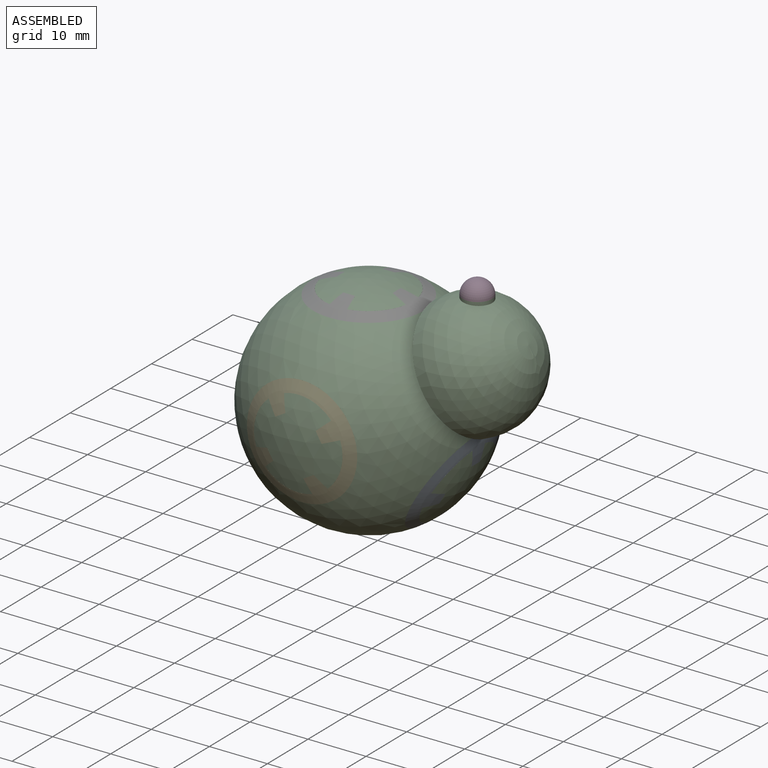
[diagram: assembled view]
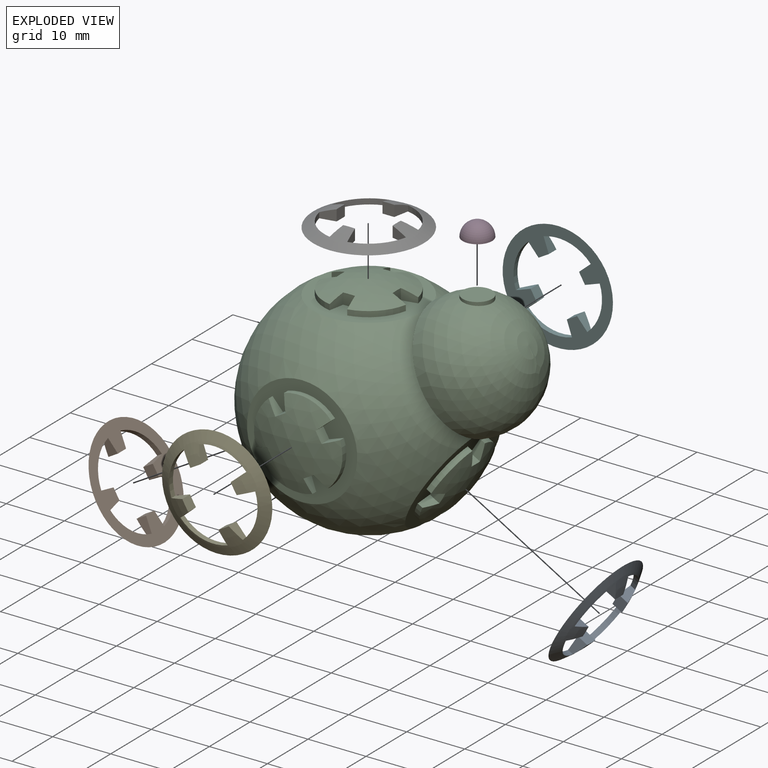
[diagram: exploded view]
GUIDED TOUR — MATED ASSEMBLY (Onshape document bc22e907c626483dd762ce62, AutoMate assembly bc22e907c626483dd762ce62_9c946bd3d4ee28ae78b2b2a9_42b98a6be32fc511b92b9dac_default)

This assembly has 7 components, labeled P0..P6 below (a component is one placed occurrence of a part; the same part can appear more than once), held together by 6 mates. A mate is a constraint between two components; its type names the relative motion it leaves free:
  FASTENED — locks the two components together rigidly (no relative motion).
Axis/direction vectors are unit vectors and 'through' points are millimeter coordinates, both in the assembly's world frame.

MATES
  1. FASTENED "Fastened 2": P4 <-> P2, direction (0.000, 1.000, 0.000) through (-7.48, -6.49, 0.26) mm
  2. FASTENED "Fastened 6": P2 <-> P3, direction (0.000, 0.000, 1.000) through (11.16, 10.02, 21.79) mm
  3. FASTENED "Fastened 5": P1 <-> P2, direction (0.864, 0.000, 0.504) through (-21.74, 10.02, -8.05) mm
  4. FASTENED "Fastened 1": P6 <-> P2, direction (0.004, 0.000, -1.000) through (-7.55, 10.02, 16.77) mm
  5. FASTENED "Fastened 3": P5 <-> P2, direction (0.000, -1.000, 0.000) through (-13.16, 26.53, -4.82) mm
  6. FASTENED "Fastened 4": P0 <-> P2, direction (-0.868, 0.000, 0.496) through (6.85, 10.02, -7.93) mm

ASSEMBLY ORDER
  1. P2 — the base component [order heuristic]
  2. P4 — core [order heuristic]
  3. P5 — core [order heuristic]
  4. P6 [order verified]
  5. P0 [order verified]
  6. P1 [order verified]
  7. P3 [order verified]
(P0, P1, P6 verified with a relaxed clearance tolerance: the source model stores slight part interference there.)
Order-tag legend:
  [order verified] — this step's position reverses a verified removal order: the component was checked to insert without passing through the ones already placed.
  [order heuristic] — the first 3 components form the assembly's core: parts whose collision-free extraction could not be verified, listed in mate-graph order.

Of the 7 components, 2 carry the full construction recipe — the FeatureScript program that regenerates the part's solid from scratch; the rest are supplied as boundary geometry only.
Each toured component is shown spotlighted twice — in the assembled view, then in the exploded view, where a leader line traces a displaced component back to its assembled socket (saturated green if recipe-attached, orange if geometry-only; every other component desaturated gray) — followed by its recipe or geometry summary and the mates that hold it.
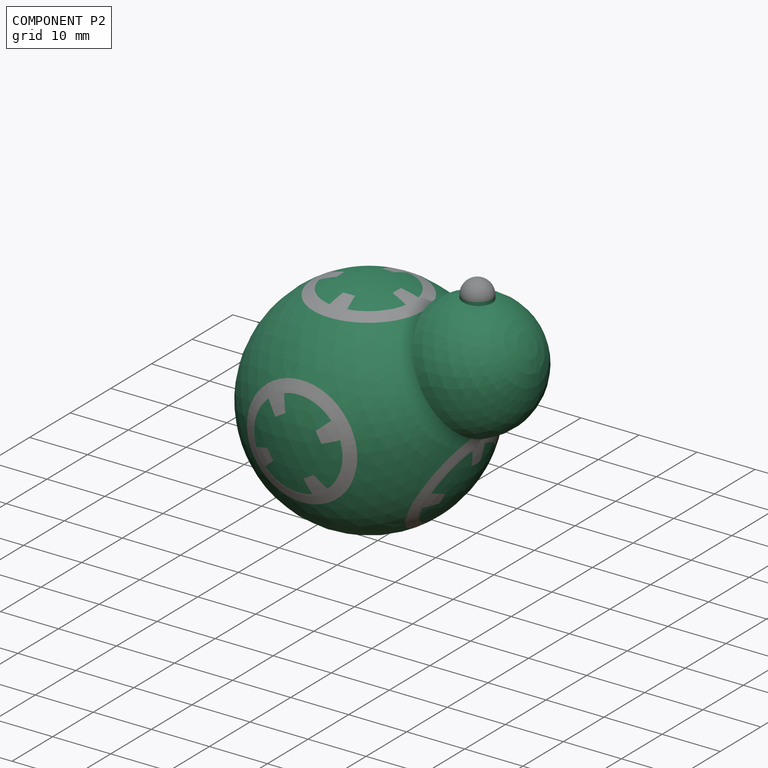
[diagram: component P2 — assembled]
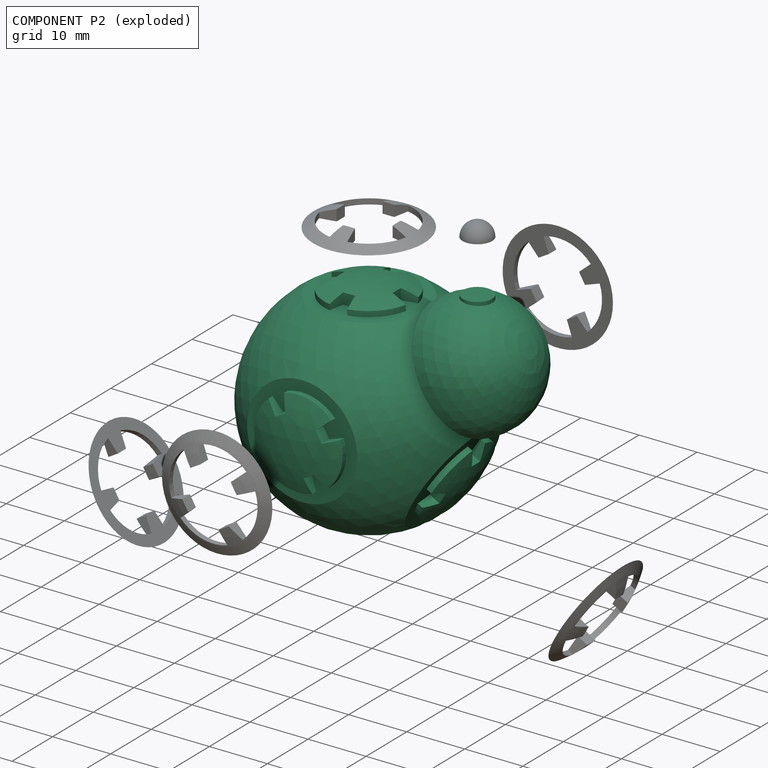
[diagram: component P2 — exploded]
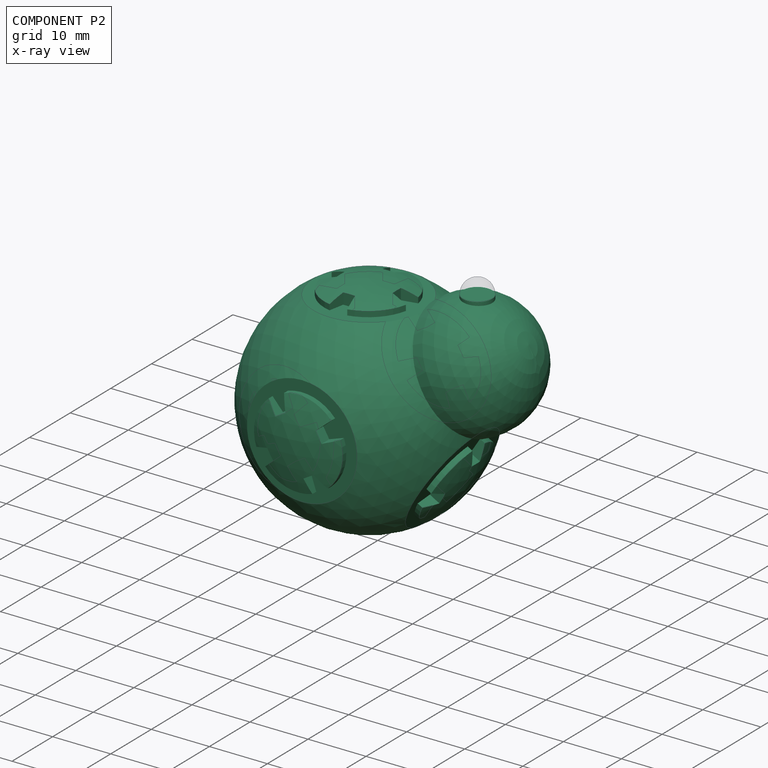
[diagram: component P2 — x-ray view]
COMPONENT P2 — recipe-attached (CADFS 00247918, mesh-verified: the recipe's output STEP matches this component's geometry to below the mesh-comparison resolution (tessellation chordal tolerance ~0.111 mm)).
Held by: FASTENED mate "Fastened 2" to P4; FASTENED mate "Fastened 6" to P3; FASTENED mate "Fastened 5" to P1; FASTENED mate "Fastened 1" to P6; FASTENED mate "Fastened 3" to P5; FASTENED mate "Fastened 4" to P0.
Construction recipe (FeatureScript — the CAD program that rebuilds this solid; sketch coordinates are in the units given by the * unit suffixes, e.g. mm):

FeatureScript 1511;
import(path : "onshape/std/geometry.fs", version : "1511.0");
import(path : "onshape/std/common.fs", version : "1511.0");
const mm = millimeter;
const VERTEX = EntityType.VERTEX;
const EDGE = EntityType.EDGE;
const FACE = EntityType.FACE;
const BODY = EntityType.BODY;
function v(x, y){return vector(x, y);}
function OD(order){return orderDisambiguation(order);}
function OSD(set){return originalSetDisambiguation(set);}
function TD(topology){return topologyDisambiguation(topology);}
function TDD(query){return trueDependencyDisambiguation(query);}
function sQuery(a, b, c) {return sketchEntityQuery(a, b, c);}

annotation { "Feature Type Name" : "Feature", "Feature Type Description" : "" }
export const myFeature = defineFeature(function(context is Context, id is Id, definition is map)
    precondition{}
    {
        {
            var Q0;
            Q0=qCreatedBy(makeId("Front.planeOp"),FACE);
            var sketch = newSketch(context, id + "F0", { "sketchPlane" : qUnion([Q0])});
            skArc(sketch, "E0", {"start": v(-6.2, 18.01) * mm, "mid": v(-18.79, -3.15) * mm, "end": v(0, -19.05) * mm});
            skLineSegment(sketch, "E1", {"start": v(0, -19.05) * mm, "end": v(0, 31.75) * mm});
            skArc(sketch, "E2", {"start": v(-10.54, 19.2) * mm, "mid": v(-8.4, 18.52) * mm, "end": v(-6.2, 18.01) * mm});
            skArc(sketch, "E3.trimOffspring", {"start": v(0, 31.75) * mm, "mid": v(-8.2, 27.93) * mm, "end": v(-10.54, 19.2) * mm});
            skPoint(sketch, "E4.trimOffspring.end.orphan", {"position": v(9.8, 19.2) * mm});
            skPoint(sketch, "E5", {"position": v(-17, -8.58) * mm});
            skLineSegment(sketch, "E6", {"start": v(-6, 29.9) * mm, "end": v(-10.66, 21.92) * mm, "construction": true});
            skSolve(sketch);
        }
        {
            var Q0;
            {var subQ0=sQuery(id+"F0.wireOp",EDGE,"E0");Q0=makeQuery(id+"F0.imprint","IMPRINT",FACE,{"disambiguationData":[TD([[makeQuery(id+"F0.imprint","IMPRINT",EDGE,{"derivedFrom":subQ0}),1.0]])]});}
            var Q1;
            Q1=sQuery(id+"F0.wireOp",EDGE,"E1");
            revolve(context, id + "F1", {"entities" : qUnion([Q0]), "axis" : qUnion([Q1]), "revolveType" : RevolveType.FULL});
        }
        {
            var Q0;
            Q0=qCreatedBy(makeId("Front.planeOp"),FACE);
            cPlane(context, id + "F2", {"entities" : qUnion([Q0]), "cplaneType" : CPlaneType.OFFSET, "offset" : 19.05 * mm, "width" : 152.4 * mm, "height" : 152.4 * mm});
        }
        {
            var Q0;
            Q0=qCreatedBy(id+"F2.planeOp",FACE);
            var sketch = newSketch(context, id + "F3", { "sketchPlane" : qUnion([Q0])});
            skCircle(sketch, "E7", {"center": v(0, 0) * mm, "radius": 10.67 * mm});
            skArc(sketch, "E8", {"start": v(1.53, -7.47) * mm, "mid": v(5.39, -5.39) * mm, "end": v(7.47, -1.53) * mm});
            skLineSegment(sketch, "E9", {"start": v(0, -4.83) * mm, "end": v(-1.02, -4.83) * mm});
            skLineSegment(sketch, "E10", {"start": v(-1.02, -4.83) * mm, "end": v(-1.53, -7.47) * mm});
            skLineSegment(sketch, "E11.MirrorCS", {"start": v(1.02, -4.83) * mm, "end": v(1.53, -7.47) * mm});
            skLineSegment(sketch, "E12.MirrorCS", {"start": v(0, -4.83) * mm, "end": v(1.02, -4.83) * mm});
            skLineSegment(sketch, "E13.1.0", {"start": v(4.83, -1.02) * mm, "end": v(7.47, -1.53) * mm});
            skLineSegment(sketch, "E13.1.1", {"start": v(4.83, 0) * mm, "end": v(4.83, 1.02) * mm});
            skLineSegment(sketch, "E13.1.2", {"start": v(4.83, 0) * mm, "end": v(4.83, -1.02) * mm});
            skLineSegment(sketch, "E13.1.3", {"start": v(4.83, 1.02) * mm, "end": v(7.47, 1.53) * mm});
            skLineSegment(sketch, "E13.2.0", {"start": v(1.02, 4.83) * mm, "end": v(1.53, 7.47) * mm});
            skLineSegment(sketch, "E13.2.1", {"start": v(0, 4.83) * mm, "end": v(-1.02, 4.83) * mm});
            skLineSegment(sketch, "E13.2.2", {"start": v(0, 4.83) * mm, "end": v(1.02, 4.83) * mm});
            skLineSegment(sketch, "E13.2.3", {"start": v(-1.02, 4.83) * mm, "end": v(-1.53, 7.47) * mm});
            skLineSegment(sketch, "E13.3.0", {"start": v(-4.83, 1.02) * mm, "end": v(-7.47, 1.53) * mm});
            skLineSegment(sketch, "E13.3.1", {"start": v(-4.83, 0) * mm, "end": v(-4.83, -1.02) * mm});
            skLineSegment(sketch, "E13.3.2", {"start": v(-4.83, 0) * mm, "end": v(-4.83, 1.02) * mm});
            skLineSegment(sketch, "E13.3.3", {"start": v(-4.83, -1.02) * mm, "end": v(-7.47, -1.53) * mm});
            skArc(sketch, "E14.trimOffspring", {"start": v(-7.47, -1.53) * mm, "mid": v(-5.39, -5.39) * mm, "end": v(-1.53, -7.47) * mm});
            skArc(sketch, "E15.trimOffspring", {"start": v(-1.53, 7.47) * mm, "mid": v(-5.39, 5.39) * mm, "end": v(-7.47, 1.53) * mm});
            skArc(sketch, "E16.trimOffspring", {"start": v(7.47, 1.53) * mm, "mid": v(5.39, 5.39) * mm, "end": v(1.53, 7.47) * mm});
            skSolve(sketch);
        }
        {
            var Q0;
            Q0 = qSketchRegion(id + "F3", true);
            extrude(context, id + "F4", {"entities" : qUnion([Q0]), "operationType" : NewBodyOperationType.REMOVE, "oppositeDirection" : true, "depth" : 2.54 * mm});
        }
        {
            var Q0;
            Q0=qCreatedBy(makeId("Front.planeOp"),FACE);
            var sketch = newSketch(context, id + "F5", { "sketchPlane" : qUnion([Q0])});
            skCircle(sketch, "E17", {"center": v(0, 0) * mm, "radius": 19.05 * mm});
            skLineSegment(sketch, "E18", {"start": v(0, -19.05) * mm, "end": v(0, 19.05) * mm});
            skLineSegment(sketch, "E19", {"start": v(0, 0) * mm, "end": v(0, 19.05) * mm});
            skLineSegment(sketch, "E20", {"start": v(0, 19.05) * mm, "end": v(16.5, -9.53) * mm});
            skLineSegment(sketch, "E21", {"start": v(16.5, -9.53) * mm, "end": v(0, -9.53) * mm});
            skLineSegment(sketch, "E22.MirrorCS", {"start": v(0, 19.05) * mm, "end": v(-16.5, -9.53) * mm});
            skLineSegment(sketch, "E23.MirrorCS", {"start": v(-16.5, -9.53) * mm, "end": v(0, -9.53) * mm});
            skLineSegment(sketch, "E24", {"start": v(16.5, 9.53) * mm, "end": v(25.5, -6.07) * mm});
            skLineSegment(sketch, "E25.MirrorCS", {"start": v(16.5, 9.52) * mm, "end": v(7.5, 25.12) * mm});
            skLineSegment(sketch, "E26.1.0", {"start": v(-16.5, 9.53) * mm, "end": v(-25.5, -6.07) * mm});
            skLineSegment(sketch, "E26.1.1", {"start": v(-16.5, 9.52) * mm, "end": v(-7.5, 25.12) * mm});
            skLineSegment(sketch, "E26.2.0", {"start": v(0, -19.05) * mm, "end": v(18, -19.05) * mm});
            skLineSegment(sketch, "E26.2.1", {"start": v(0, -19.05) * mm, "end": v(-18, -19.05) * mm});
            skPoint(sketch, "E27.start.orphan", {"position": v(8.25, 4.76) * mm});
            skLineSegment(sketch, "E28", {"start": v(0, 0) * mm, "end": v(-16.5, 9.53) * mm});
            skLineSegment(sketch, "E29", {"start": v(0, 0) * mm, "end": v(16.5, 9.53) * mm});
            skSolve(sketch);
        }
        {
            var Q0;
            Q0=sQuery(id+"F5.wireOp",VERTEX,"E26.2.0.start");
            var Q1;
            Q1=sQuery(id+"F5.wireOp",EDGE,"E18");
            cPlane(context, id + "F6", {"entities" : qUnion([Q0, Q1]), "cplaneType" : CPlaneType.LINE_POINT, "offset" : 25.4 * mm, "width" : 152.4 * mm, "height" : 152.4 * mm});
        }
        {
            var Q0;
            Q0=qCreatedBy(id+"F6.planeOp",FACE);
            var sketch = newSketch(context, id + "F7", { "sketchPlane" : qUnion([Q0])});
            skCircle(sketch, "E30", {"center": v(0, 0) * mm, "radius": 10.67 * mm});
            skArc(sketch, "E31", {"start": v(1.53, -7.47) * mm, "mid": v(5.39, -5.39) * mm, "end": v(7.47, -1.53) * mm});
            skLineSegment(sketch, "E32", {"start": v(0, -4.83) * mm, "end": v(-1.02, -4.83) * mm});
            skLineSegment(sketch, "E33", {"start": v(-1.02, -4.83) * mm, "end": v(-1.53, -7.47) * mm});
            skLineSegment(sketch, "E34.MirrorCS", {"start": v(1.02, -4.83) * mm, "end": v(1.53, -7.47) * mm});
            skLineSegment(sketch, "E35.MirrorCS", {"start": v(0, -4.83) * mm, "end": v(1.02, -4.83) * mm});
            skLineSegment(sketch, "E36.1.0", {"start": v(4.83, -1.02) * mm, "end": v(7.47, -1.53) * mm});
            skLineSegment(sketch, "E36.1.1", {"start": v(4.83, 0) * mm, "end": v(4.83, 1.02) * mm});
            skLineSegment(sketch, "E36.1.2", {"start": v(4.83, 0) * mm, "end": v(4.83, -1.02) * mm});
            skLineSegment(sketch, "E36.1.3", {"start": v(4.83, 1.02) * mm, "end": v(7.47, 1.53) * mm});
            skLineSegment(sketch, "E36.2.0", {"start": v(1.02, 4.83) * mm, "end": v(1.53, 7.47) * mm});
            skLineSegment(sketch, "E36.2.1", {"start": v(0, 4.83) * mm, "end": v(-1.02, 4.83) * mm});
            skLineSegment(sketch, "E36.2.2", {"start": v(0, 4.83) * mm, "end": v(1.02, 4.83) * mm});
            skLineSegment(sketch, "E36.2.3", {"start": v(-1.02, 4.83) * mm, "end": v(-1.53, 7.47) * mm});
            skLineSegment(sketch, "E36.3.0", {"start": v(-4.83, 1.02) * mm, "end": v(-7.47, 1.53) * mm});
            skLineSegment(sketch, "E36.3.1", {"start": v(-4.83, 0) * mm, "end": v(-4.83, -1.02) * mm});
            skLineSegment(sketch, "E36.3.2", {"start": v(-4.83, 0) * mm, "end": v(-4.83, 1.02) * mm});
            skLineSegment(sketch, "E36.3.3", {"start": v(-4.83, -1.02) * mm, "end": v(-7.47, -1.53) * mm});
            skArc(sketch, "E37.trimOffspring", {"start": v(-7.47, -1.53) * mm, "mid": v(-5.39, -5.39) * mm, "end": v(-1.53, -7.47) * mm});
            skArc(sketch, "E38.trimOffspring", {"start": v(-1.53, 7.47) * mm, "mid": v(-5.39, 5.39) * mm, "end": v(-7.47, 1.53) * mm});
            skArc(sketch, "E39.trimOffspring", {"start": v(7.47, 1.53) * mm, "mid": v(5.39, 5.39) * mm, "end": v(1.53, 7.47) * mm});
            skSolve(sketch);
        }
        {
            var Q0;
            Q0=makeQuery(id+"F7.imprint","IMPRINT",FACE,{"disambiguationData":[TD([[makeQuery(id+"F7.imprint","IMPRINT",EDGE,{"derivedFrom":sQuery(id+"F7.wireOp",EDGE,"E30")}),1.0]])]});
            extrude(context, id + "F8", {"entities" : qUnion([Q0]), "operationType" : NewBodyOperationType.REMOVE, "depth" : 2.54 * mm});
        }
        {
            var Q0;
            Q0=sQuery(id+"F5.wireOp",VERTEX,"E28.end");
            var Q1;
            Q1=sQuery(id+"F5.wireOp",EDGE,"E28");
            cPlane(context, id + "F9", {"entities" : qUnion([Q0, Q1]), "cplaneType" : CPlaneType.LINE_POINT, "offset" : 25.4 * mm, "width" : 152.4 * mm, "height" : 152.4 * mm});
        }
        {
            var Q0;
            Q0=qCreatedBy(id+"F9.planeOp",FACE);
            var sketch = newSketch(context, id + "F10", { "sketchPlane" : qUnion([Q0])});
            skCircle(sketch, "E40", {"center": v(0, 0) * mm, "radius": 10.67 * mm});
            skArc(sketch, "E41", {"start": v(1.53, -7.47) * mm, "mid": v(5.39, -5.39) * mm, "end": v(7.47, -1.53) * mm});
            skLineSegment(sketch, "E42", {"start": v(0, -4.83) * mm, "end": v(-1.02, -4.83) * mm});
            skLineSegment(sketch, "E43", {"start": v(-1.02, -4.83) * mm, "end": v(-1.53, -7.47) * mm});
            skLineSegment(sketch, "E44.MirrorCS", {"start": v(1.02, -4.83) * mm, "end": v(1.53, -7.47) * mm});
            skLineSegment(sketch, "E45.MirrorCS", {"start": v(0, -4.83) * mm, "end": v(1.02, -4.83) * mm});
            skLineSegment(sketch, "E46.1.0", {"start": v(4.83, -1.02) * mm, "end": v(7.47, -1.53) * mm});
            skLineSegment(sketch, "E46.1.1", {"start": v(4.83, 0) * mm, "end": v(4.83, 1.02) * mm});
            skLineSegment(sketch, "E46.1.2", {"start": v(4.83, 0) * mm, "end": v(4.83, -1.02) * mm});
            skLineSegment(sketch, "E46.1.3", {"start": v(4.83, 1.02) * mm, "end": v(7.47, 1.53) * mm});
            skLineSegment(sketch, "E46.2.0", {"start": v(1.02, 4.83) * mm, "end": v(1.53, 7.47) * mm});
            skLineSegment(sketch, "E46.2.1", {"start": v(0, 4.83) * mm, "end": v(-1.02, 4.83) * mm});
            skLineSegment(sketch, "E46.2.2", {"start": v(0, 4.83) * mm, "end": v(1.02, 4.83) * mm});
            skLineSegment(sketch, "E46.2.3", {"start": v(-1.02, 4.83) * mm, "end": v(-1.53, 7.47) * mm});
            skLineSegment(sketch, "E46.3.0", {"start": v(-4.83, 1.02) * mm, "end": v(-7.47, 1.53) * mm});
            skLineSegment(sketch, "E46.3.1", {"start": v(-4.83, 0) * mm, "end": v(-4.83, -1.02) * mm});
            skLineSegment(sketch, "E46.3.2", {"start": v(-4.83, 0) * mm, "end": v(-4.83, 1.02) * mm});
            skLineSegment(sketch, "E46.3.3", {"start": v(-4.83, -1.02) * mm, "end": v(-7.47, -1.53) * mm});
            skArc(sketch, "E47.trimOffspring", {"start": v(-7.47, -1.53) * mm, "mid": v(-5.39, -5.39) * mm, "end": v(-1.53, -7.47) * mm});
            skArc(sketch, "E48.trimOffspring", {"start": v(-1.53, 7.47) * mm, "mid": v(-5.39, 5.39) * mm, "end": v(-7.47, 1.53) * mm});
            skArc(sketch, "E49.trimOffspring", {"start": v(7.47, 1.53) * mm, "mid": v(5.39, 5.39) * mm, "end": v(1.53, 7.47) * mm});
            skSolve(sketch);
        }
        {
            var Q0;
            Q0=makeQuery(id+"F10.imprint","IMPRINT",FACE,{"disambiguationData":[TD([[makeQuery(id+"F10.imprint","IMPRINT",EDGE,{"derivedFrom":sQuery(id+"F10.wireOp",EDGE,"E40")}),1.0]])]});
            extrude(context, id + "F11", {"entities" : qUnion([Q0]), "operationType" : NewBodyOperationType.REMOVE, "oppositeDirection" : true, "depth" : 2.54 * mm});
        }
        {
            var Q0;
            Q0=sQuery(id+"F5.wireOp",VERTEX,"E29.end");
            var Q1;
            Q1=sQuery(id+"F5.wireOp",EDGE,"E29");
            cPlane(context, id + "F12", {"entities" : qUnion([Q0, Q1]), "cplaneType" : CPlaneType.LINE_POINT, "offset" : 25.4 * mm, "width" : 152.4 * mm, "height" : 152.4 * mm});
        }
        {
            var Q0;
            Q0=qCreatedBy(id+"F12.planeOp",FACE);
            var sketch = newSketch(context, id + "F13", { "sketchPlane" : qUnion([Q0])});
            skCircle(sketch, "E50", {"center": v(0, 0) * mm, "radius": 10.67 * mm});
            skArc(sketch, "E51", {"start": v(1.53, -7.47) * mm, "mid": v(5.39, -5.39) * mm, "end": v(7.47, -1.53) * mm});
            skLineSegment(sketch, "E52", {"start": v(0, -4.83) * mm, "end": v(-1.02, -4.83) * mm});
            skLineSegment(sketch, "E53", {"start": v(-1.02, -4.83) * mm, "end": v(-1.53, -7.47) * mm});
            skLineSegment(sketch, "E54.MirrorCS", {"start": v(1.02, -4.83) * mm, "end": v(1.53, -7.47) * mm});
            skLineSegment(sketch, "E55.MirrorCS", {"start": v(0, -4.83) * mm, "end": v(1.02, -4.83) * mm});
            skLineSegment(sketch, "E56.1.0", {"start": v(4.83, -1.02) * mm, "end": v(7.47, -1.53) * mm});
            skLineSegment(sketch, "E56.1.1", {"start": v(4.83, 0) * mm, "end": v(4.83, 1.02) * mm});
            skLineSegment(sketch, "E56.1.2", {"start": v(4.83, 0) * mm, "end": v(4.83, -1.02) * mm});
            skLineSegment(sketch, "E56.1.3", {"start": v(4.83, 1.02) * mm, "end": v(7.47, 1.53) * mm});
            skLineSegment(sketch, "E56.2.0", {"start": v(1.02, 4.83) * mm, "end": v(1.53, 7.47) * mm});
            skLineSegment(sketch, "E56.2.1", {"start": v(0, 4.83) * mm, "end": v(-1.02, 4.83) * mm});
            skLineSegment(sketch, "E56.2.2", {"start": v(0, 4.83) * mm, "end": v(1.02, 4.83) * mm});
            skLineSegment(sketch, "E56.2.3", {"start": v(-1.02, 4.83) * mm, "end": v(-1.53, 7.47) * mm});
            skLineSegment(sketch, "E56.3.0", {"start": v(-4.83, 1.02) * mm, "end": v(-7.47, 1.53) * mm});
            skLineSegment(sketch, "E56.3.1", {"start": v(-4.83, 0) * mm, "end": v(-4.83, -1.02) * mm});
            skLineSegment(sketch, "E56.3.2", {"start": v(-4.83, 0) * mm, "end": v(-4.83, 1.02) * mm});
            skLineSegment(sketch, "E56.3.3", {"start": v(-4.83, -1.02) * mm, "end": v(-7.47, -1.53) * mm});
            skArc(sketch, "E57.trimOffspring", {"start": v(-7.47, -1.53) * mm, "mid": v(-5.39, -5.39) * mm, "end": v(-1.53, -7.47) * mm});
            skArc(sketch, "E58.trimOffspring", {"start": v(-1.53, 7.47) * mm, "mid": v(-5.39, 5.39) * mm, "end": v(-7.47, 1.53) * mm});
            skArc(sketch, "E59.trimOffspring", {"start": v(7.47, 1.53) * mm, "mid": v(5.39, 5.39) * mm, "end": v(1.53, 7.47) * mm});
            skSolve(sketch);
        }
        {
            var Q0;
            Q0=makeQuery(id+"F13.imprint","IMPRINT",FACE,{"disambiguationData":[TD([[makeQuery(id+"F13.imprint","IMPRINT",EDGE,{"derivedFrom":sQuery(id+"F13.wireOp",EDGE,"E50")}),1.0]])]});
            extrude(context, id + "F14", {"entities" : qUnion([Q0]), "operationType" : NewBodyOperationType.REMOVE, "oppositeDirection" : true, "depth" : 2.54 * mm});
        }
        {
            var Q0;
            Q0=qCreatedBy(makeId("Right.planeOp"),FACE);
            var sketch = newSketch(context, id + "F15", { "sketchPlane" : qUnion([Q0])});
            skCircle(sketch, "E60", {"center": v(0, 0) * mm, "radius": 19.05 * mm});
            skLineSegment(sketch, "E61", {"start": v(0, 0) * mm, "end": v(19.05, 0) * mm});
            skSolve(sketch);
        }
        {
            var Q0;
            Q0=sQuery(id+"F15.wireOp",VERTEX,"E61.end");
            var Q1;
            Q1=sQuery(id+"F15.wireOp",EDGE,"E61");
            cPlane(context, id + "F16", {"entities" : qUnion([Q0, Q1]), "cplaneType" : CPlaneType.LINE_POINT, "offset" : 25.4 * mm, "width" : 152.4 * mm, "height" : 152.4 * mm});
        }
        {
            var Q0;
            Q0=qCreatedBy(id+"F16.planeOp",FACE);
            var sketch = newSketch(context, id + "F17", { "sketchPlane" : qUnion([Q0])});
            skCircle(sketch, "E62", {"center": v(0, 0) * mm, "radius": 10.67 * mm});
            skArc(sketch, "E63", {"start": v(1.53, -7.47) * mm, "mid": v(5.39, -5.39) * mm, "end": v(7.47, -1.53) * mm});
            skLineSegment(sketch, "E64", {"start": v(0, -4.83) * mm, "end": v(-1.02, -4.83) * mm});
            skLineSegment(sketch, "E65", {"start": v(-1.02, -4.83) * mm, "end": v(-1.53, -7.47) * mm});
            skLineSegment(sketch, "E66.MirrorCS", {"start": v(1.02, -4.83) * mm, "end": v(1.53, -7.47) * mm});
            skLineSegment(sketch, "E67.MirrorCS", {"start": v(0, -4.83) * mm, "end": v(1.02, -4.83) * mm});
            skLineSegment(sketch, "E68.1.0", {"start": v(4.83, -1.02) * mm, "end": v(7.47, -1.53) * mm});
            skLineSegment(sketch, "E68.1.1", {"start": v(4.83, 0) * mm, "end": v(4.83, 1.02) * mm});
            skLineSegment(sketch, "E68.1.2", {"start": v(4.83, 0) * mm, "end": v(4.83, -1.02) * mm});
            skLineSegment(sketch, "E68.1.3", {"start": v(4.83, 1.02) * mm, "end": v(7.47, 1.53) * mm});
            skLineSegment(sketch, "E68.2.0", {"start": v(1.02, 4.83) * mm, "end": v(1.53, 7.47) * mm});
            skLineSegment(sketch, "E68.2.1", {"start": v(0, 4.83) * mm, "end": v(-1.02, 4.83) * mm});
            skLineSegment(sketch, "E68.2.2", {"start": v(0, 4.83) * mm, "end": v(1.02, 4.83) * mm});
            skLineSegment(sketch, "E68.2.3", {"start": v(-1.02, 4.83) * mm, "end": v(-1.53, 7.47) * mm});
            skLineSegment(sketch, "E68.3.0", {"start": v(-4.83, 1.02) * mm, "end": v(-7.47, 1.53) * mm});
            skLineSegment(sketch, "E68.3.1", {"start": v(-4.83, 0) * mm, "end": v(-4.83, -1.02) * mm});
            skLineSegment(sketch, "E68.3.2", {"start": v(-4.83, 0) * mm, "end": v(-4.83, 1.02) * mm});
            skLineSegment(sketch, "E68.3.3", {"start": v(-4.83, -1.02) * mm, "end": v(-7.47, -1.53) * mm});
            skArc(sketch, "E69.trimOffspring", {"start": v(-7.47, -1.53) * mm, "mid": v(-5.39, -5.39) * mm, "end": v(-1.53, -7.47) * mm});
            skArc(sketch, "E70.trimOffspring", {"start": v(-1.53, 7.47) * mm, "mid": v(-5.39, 5.39) * mm, "end": v(-7.47, 1.53) * mm});
            skArc(sketch, "E71.trimOffspring", {"start": v(7.47, 1.53) * mm, "mid": v(5.39, 5.39) * mm, "end": v(1.53, 7.47) * mm});
            skSolve(sketch);
        }
        {
            var Q0;
            Q0=makeQuery(id+"F17.imprint","IMPRINT",FACE,{"disambiguationData":[TD([[makeQuery(id+"F17.imprint","IMPRINT",EDGE,{"derivedFrom":sQuery(id+"F17.wireOp",EDGE,"E62")}),1.0]])]});
            extrude(context, id + "F18", {"entities" : qUnion([Q0]), "operationType" : NewBodyOperationType.REMOVE, "oppositeDirection" : true, "depth" : 2.54 * mm});
        }
        {
            var Q0;
            Q0=sQuery(id+"F0.wireOp",EDGE,"E6");
            cPlane(context, id + "F19", {"entities" : qUnion([Q0]), "cplaneType" : CPlaneType.LINE_ANGLE, "offset" : 25.4 * mm, "angle" : 0 * degree, "flipAlignment" : true, "width" : 152.4 * mm, "height" : 152.4 * mm});
        }
        {
            var Q0;
            Q0=qCreatedBy(id+"F19.planeOp",FACE);
            var sketch = newSketch(context, id + "F20", { "sketchPlane" : qUnion([Q0])});
            skCircle(sketch, "E72", {"center": v(0, 18.64) * mm, "radius": 2.54 * mm});
            skSolve(sketch);
        }
        {
            var Q0;
            Q0 = qSketchRegion(id + "F20", true);
            var Q1;
            Q1=sQuery(id+"F20.wireOp",EDGE,"E72");
            extrude(context, id + "F21", {"entities" : qUnion([Q0]), "operationType" : NewBodyOperationType.ADD, "surfaceEntities" : qUnion([Q1]), "depth" : 1.27 * mm});
        }
        {
            var Q0;
            Q0=qCreatedBy(id+"F6.planeOp",FACE);
            var sketch = newSketch(context, id + "F22", { "sketchPlane" : qUnion([Q0])});
            skCircle(sketch, "E73", {"center": v(0, 0) * mm, "radius": 3.81 * mm});
            skSolve(sketch);
        }
        {
            var Q0;
            Q0 = qSketchRegion(id + "F22", true);
            extrude(context, id + "F23", {"entities" : qUnion([Q0]), "operationType" : NewBodyOperationType.REMOVE, "depth" : 0.38 * mm});
        }
    });
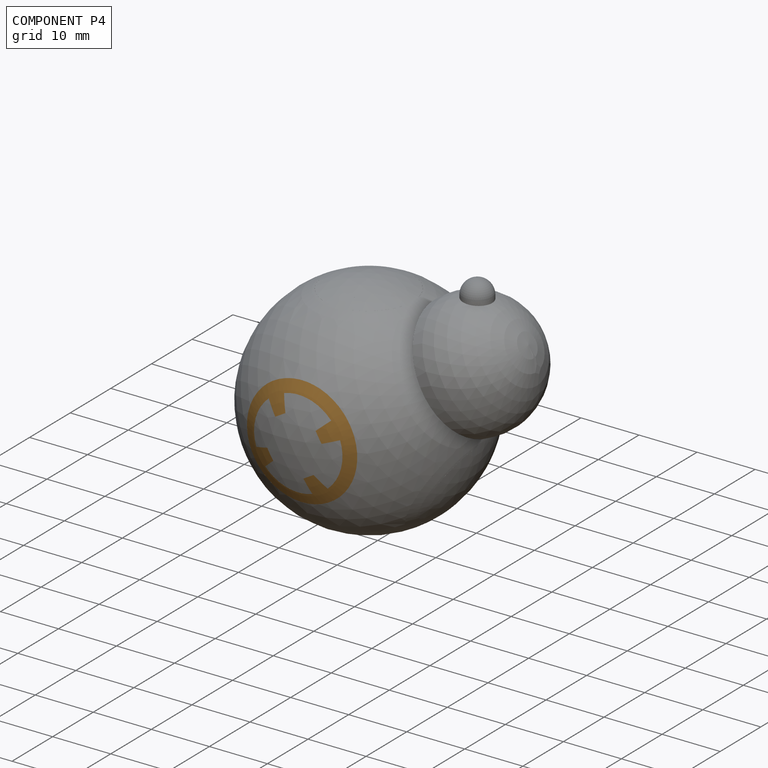
[diagram: component P4 — assembled]
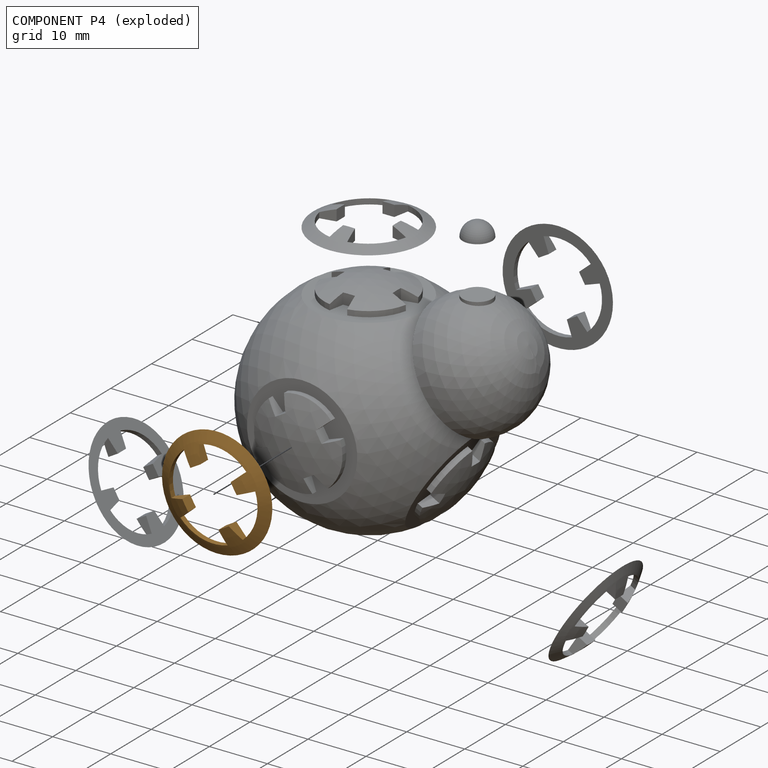
[diagram: component P4 — exploded]
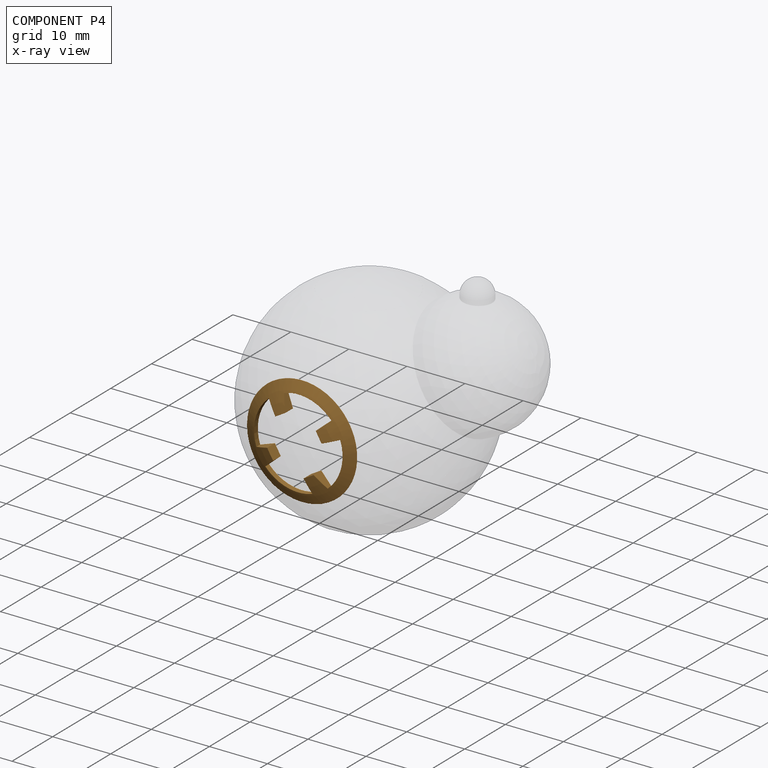
[diagram: component P4 — x-ray view]
COMPONENT P4 — geometry summary (no construction recipe available for this part):
  bounding box: 19.0 x 19.0 x 1.9 mm
  B-rep topology: 1 solid, 18 faces, 102 edges
  volume: 89 mm^3 (13% of its bounding box)
  symmetry: 4-fold rotationally symmetric about the y axis; mirror-symmetric across its x mid-plane, z mid-plane
Held by: FASTENED mate "Fastened 2" to P2.
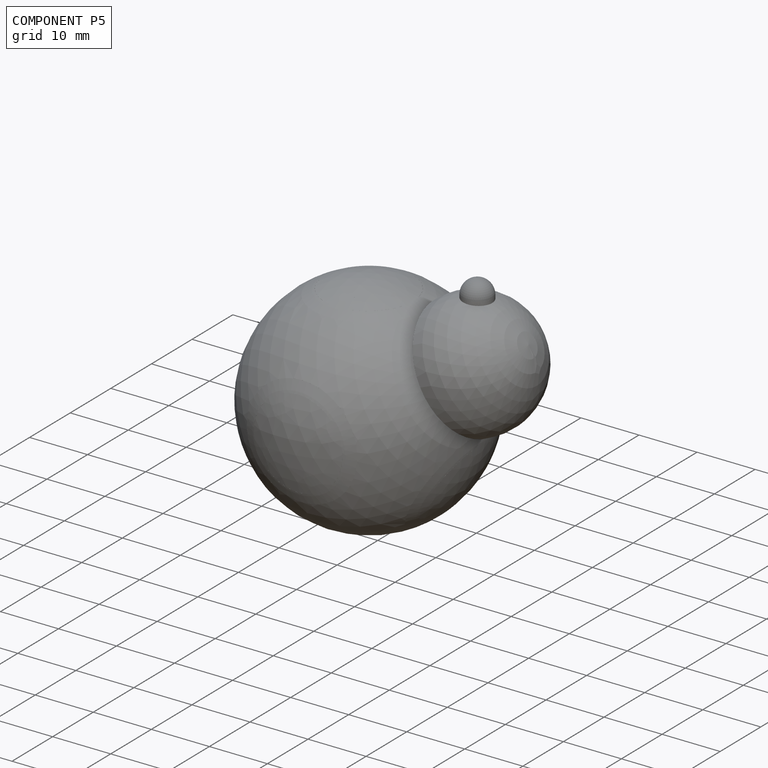
[diagram: component P5 — assembled]
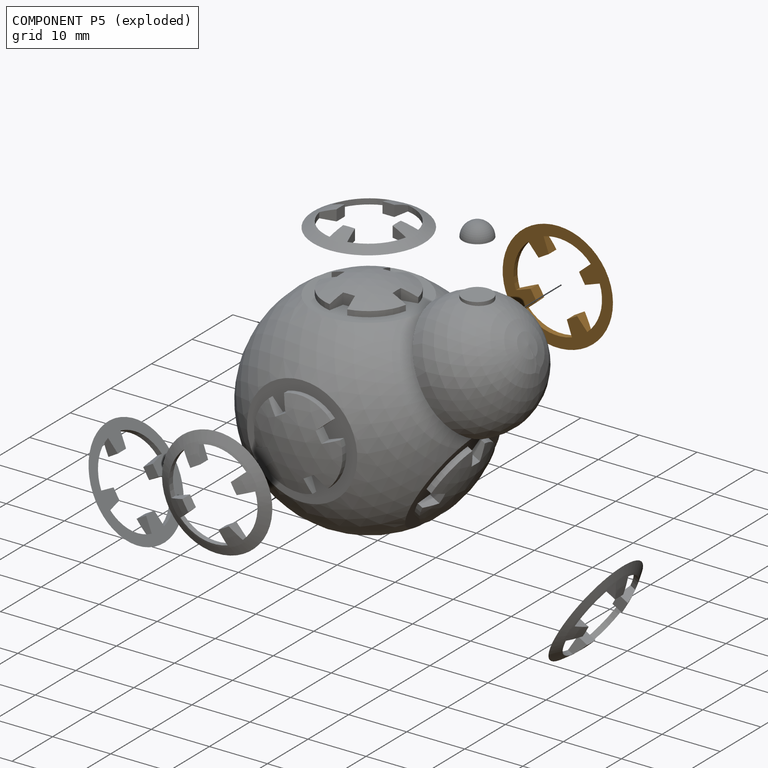
[diagram: component P5 — exploded]
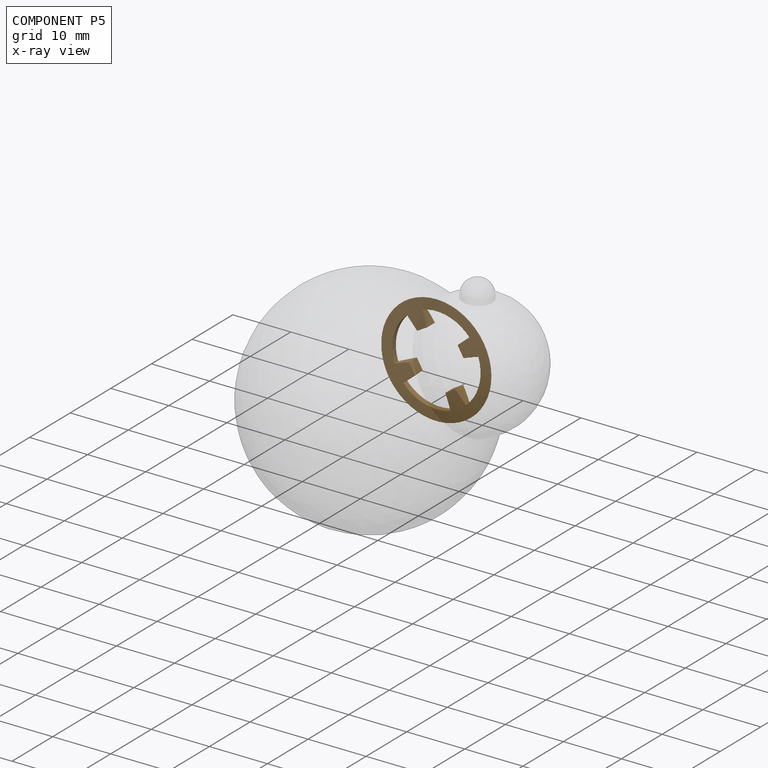
[diagram: component P5 — x-ray view]
COMPONENT P5 — geometry summary (no construction recipe available for this part):
  bounding box: 19.0 x 19.0 x 1.9 mm
  B-rep topology: 1 solid, 18 faces, 102 edges
  volume: 89 mm^3 (13% of its bounding box)
  symmetry: 4-fold rotationally symmetric about the y axis; mirror-symmetric across its x mid-plane, z mid-plane
Held by: FASTENED mate "Fastened 3" to P2.
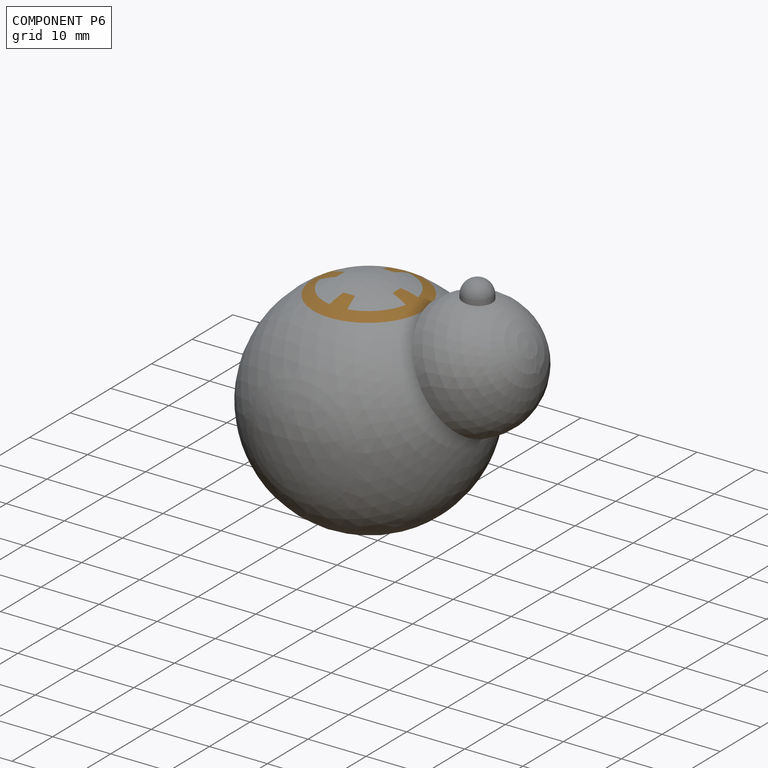
[diagram: component P6 — assembled]
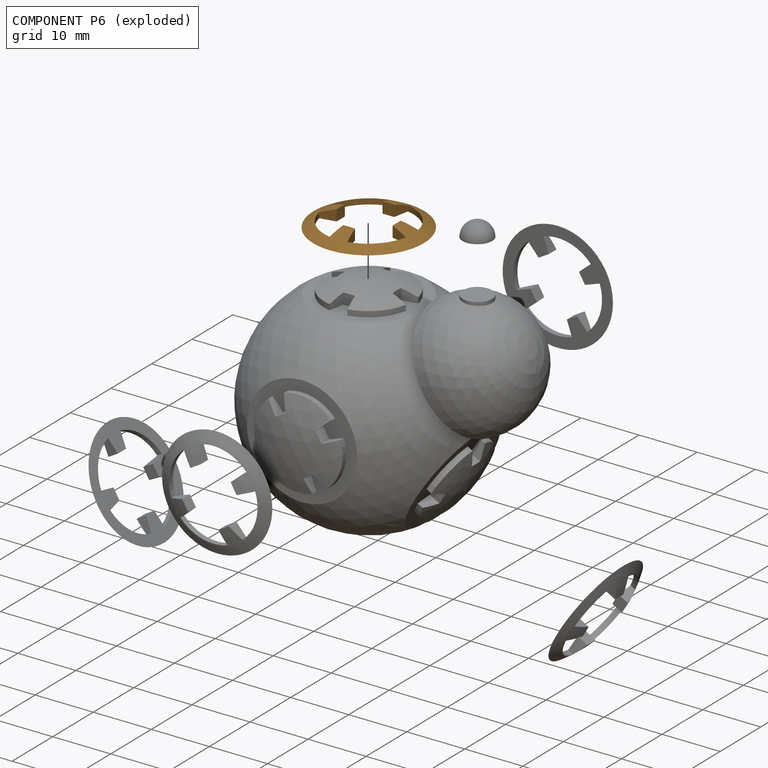
[diagram: component P6 — exploded]
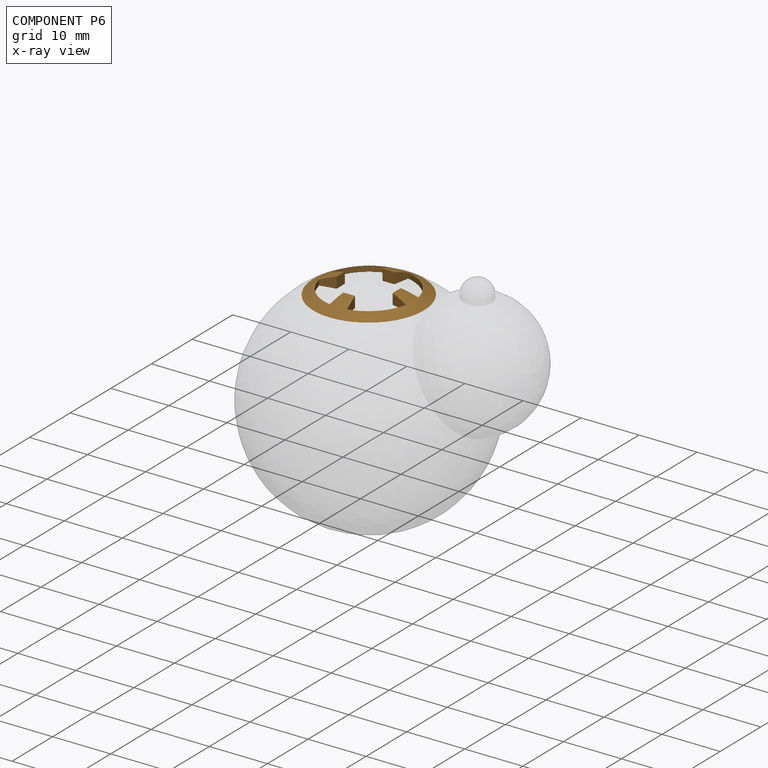
[diagram: component P6 — x-ray view]
COMPONENT P6 — geometry summary (no construction recipe available for this part):
  bounding box: 19.0 x 19.0 x 1.9 mm
  B-rep topology: 1 solid, 18 faces, 102 edges
  volume: 89 mm^3 (13% of its bounding box)
  symmetry: 4-fold rotationally symmetric about the y axis; mirror-symmetric across its x mid-plane, z mid-plane
Held by: FASTENED mate "Fastened 1" to P2.
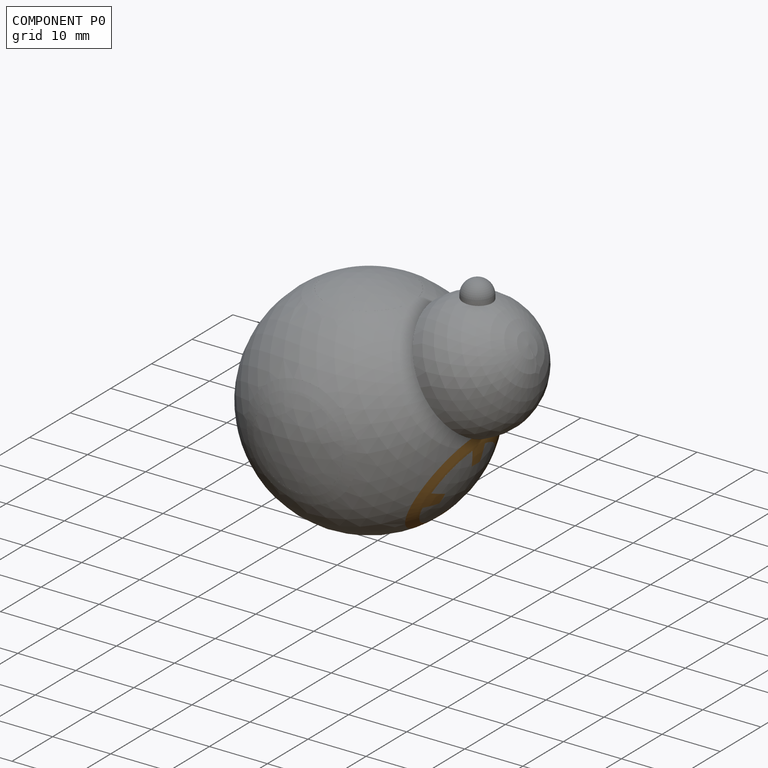
[diagram: component P0 — assembled]
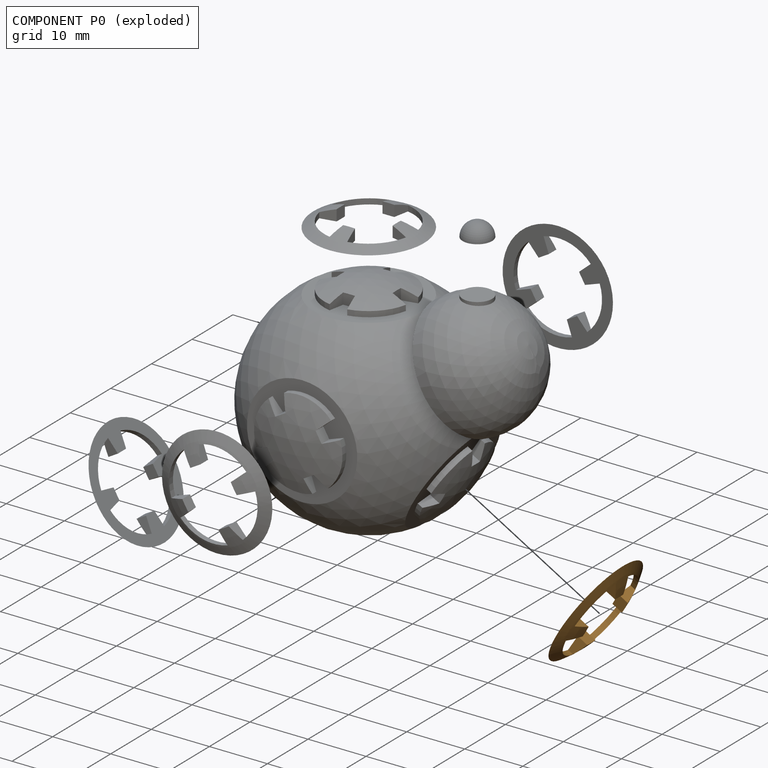
[diagram: component P0 — exploded]
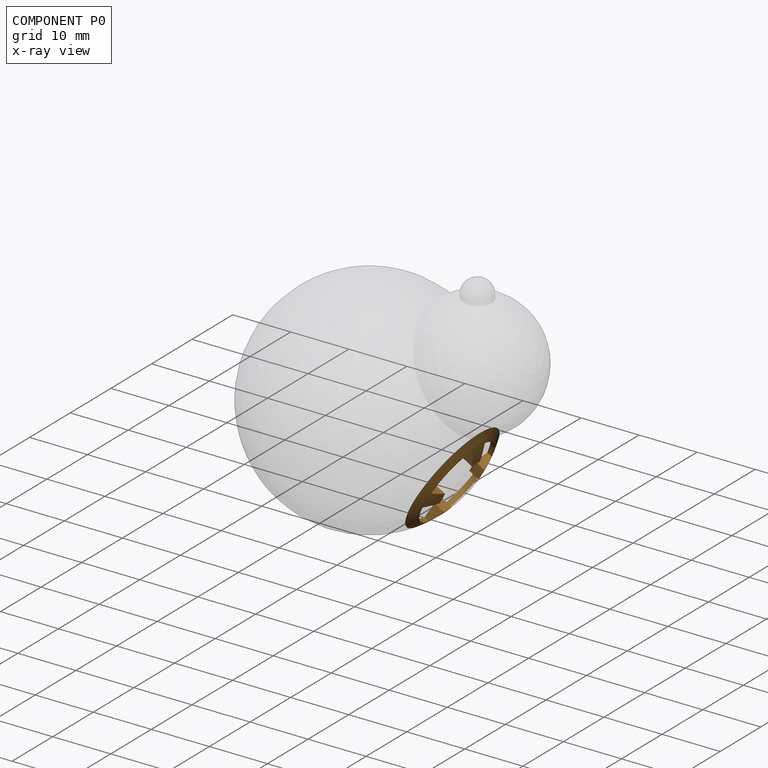
[diagram: component P0 — x-ray view]
COMPONENT P0 — geometry summary (no construction recipe available for this part):
  bounding box: 19.0 x 19.0 x 1.9 mm
  B-rep topology: 1 solid, 18 faces, 102 edges
  volume: 89 mm^3 (13% of its bounding box)
  symmetry: 4-fold rotationally symmetric about the y axis; mirror-symmetric across its x mid-plane, z mid-plane
Held by: FASTENED mate "Fastened 4" to P2.
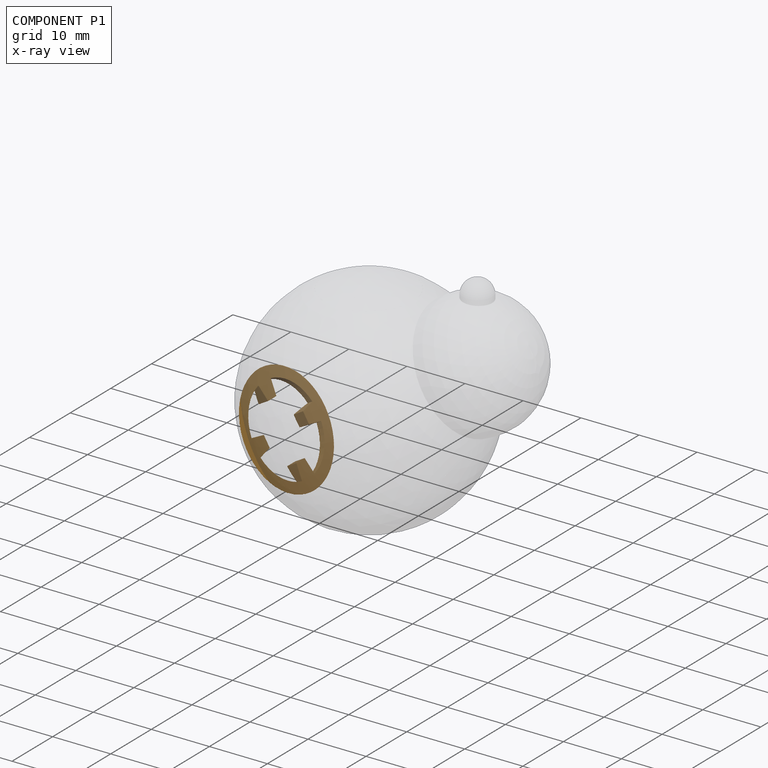
[diagram: component P1 — x-ray view]
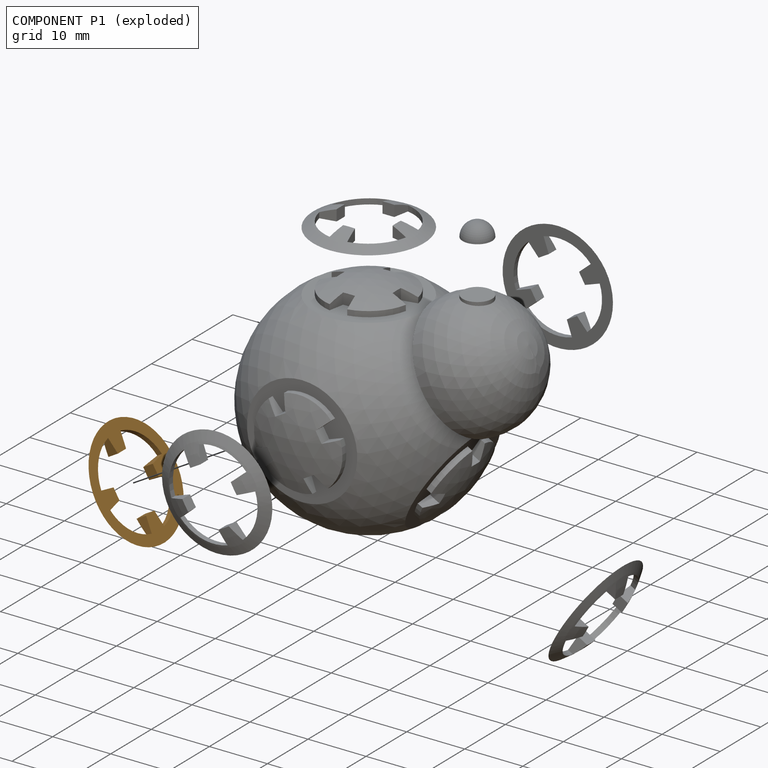
[diagram: component P1 — exploded]
COMPONENT P1 — geometry summary (no construction recipe available for this part):
  bounding box: 19.0 x 19.0 x 1.9 mm
  B-rep topology: 1 solid, 18 faces, 102 edges
  volume: 89 mm^3 (13% of its bounding box)
  symmetry: 4-fold rotationally symmetric about the y axis; mirror-symmetric across its x mid-plane, z mid-plane
Held by: FASTENED mate "Fastened 5" to P2.
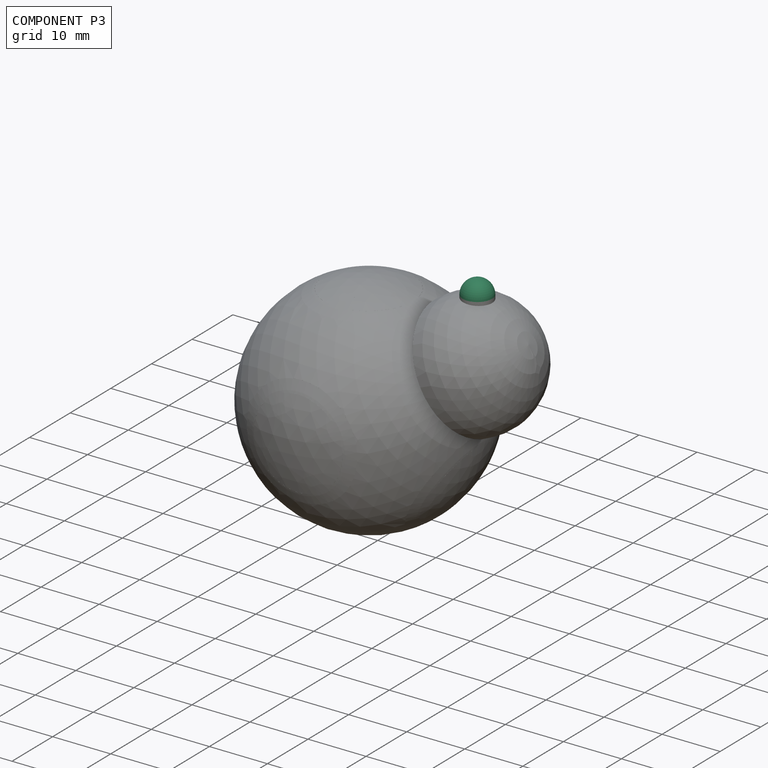
[diagram: component P3 — assembled]
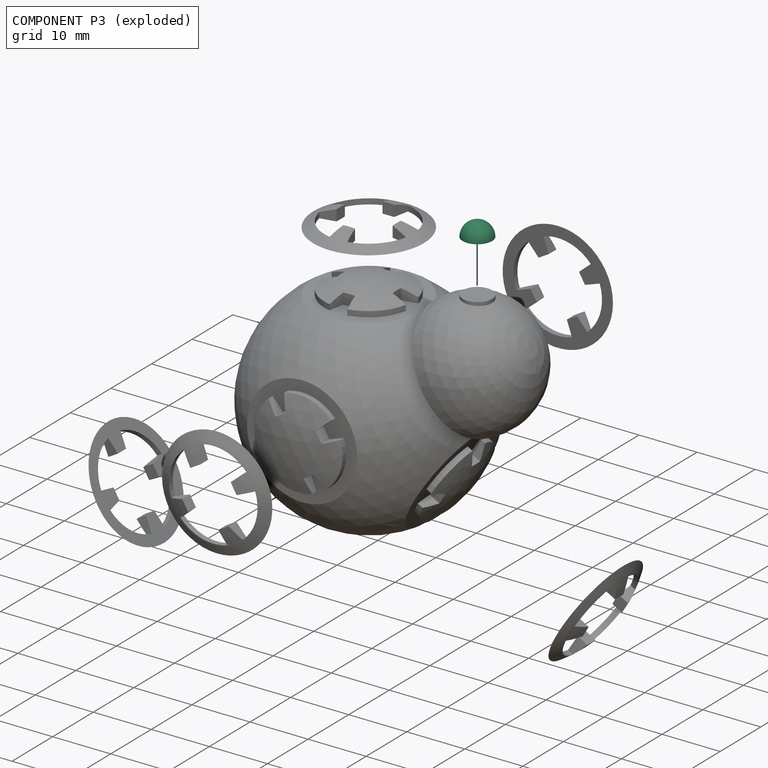
[diagram: component P3 — exploded]
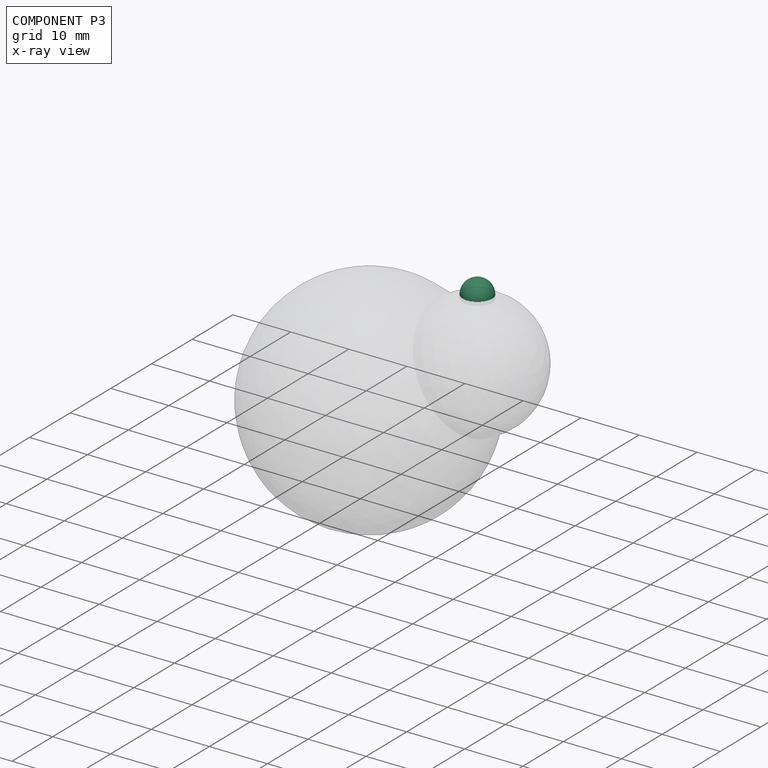
[diagram: component P3 — x-ray view]
COMPONENT P3 — recipe-attached (CADFS 00247919, mesh-verified: the recipe's output STEP matches this component's geometry to below the mesh-comparison resolution (tessellation chordal tolerance ~0.0114 mm)).
Held by: FASTENED mate "Fastened 6" to P2.
Construction recipe (FeatureScript — the CAD program that rebuilds this solid; sketch coordinates are in the units given by the * unit suffixes, e.g. mm):

FeatureScript 1511;
import(path : "onshape/std/geometry.fs", version : "1511.0");
import(path : "onshape/std/common.fs", version : "1511.0");
const mm = millimeter;
const VERTEX = EntityType.VERTEX;
const EDGE = EntityType.EDGE;
const FACE = EntityType.FACE;
const BODY = EntityType.BODY;
function v(x, y){return vector(x, y);}
function OD(order){return orderDisambiguation(order);}
function OSD(set){return originalSetDisambiguation(set);}
function TD(topology){return topologyDisambiguation(topology);}
function TDD(query){return trueDependencyDisambiguation(query);}
function sQuery(a, b, c) {return sketchEntityQuery(a, b, c);}

annotation { "Feature Type Name" : "Feature", "Feature Type Description" : "" }
export const myFeature = defineFeature(function(context is Context, id is Id, definition is map)
    precondition{}
    {
        {
            var Q0;
            Q0=qCreatedBy(makeId("Front.planeOp"),FACE);
            var sketch = newSketch(context, id + "F0", { "sketchPlane" : qUnion([Q0])});
            skArc(sketch, "E0", {"start": v(0, 2.54) * mm, "mid": v(-1.8, 1.8) * mm, "end": v(-2.54, 0) * mm});
            skLineSegment(sketch, "E1", {"start": v(0, 0) * mm, "end": v(0, 2.54) * mm});
            skLineSegment(sketch, "E2", {"start": v(0, 0) * mm, "end": v(-2.54, 0) * mm});
            skSolve(sketch);
        }
        {
            var Q0;
            Q0=makeQuery(id+"F0.imprint","IMPRINT",FACE,{"disambiguationData":[TD([[makeQuery(id+"F0.imprint","IMPRINT",EDGE,{"derivedFrom":sQuery(id+"F0.wireOp",EDGE,"E0")}),1.0]])]});
            var Q1;
            Q1=sQuery(id+"F0.wireOp",EDGE,"E1");
            revolve(context, id + "F1", {"entities" : qUnion([Q0]), "axis" : qUnion([Q1]), "revolveType" : RevolveType.FULL});
        }
    });
PROVENANCE & LICENSES
Assembly (occurrences, transforms, mates, per-part STEP geometry): AutoMate dataset, Zenodo record 7776208, CC0.
Construction recipes: CADFS (HuggingFace VladPyatov/CADFS, CC-BY-4.0, layered over the ABC dataset), FeatureScript reconstruction programs keyed by ABC model id.
Join: ABC meta listings map ABC model id -> Onshape documentId; within a shared document, parts are matched by geometric signature (bounding-box dims + volume at 0.1% relative tolerance, exact B-rep face/solid counts).
Verification: 2 of this assembly's 7 components carry a recipe attachment, and every attachment is mesh-verified: the CADFS STEP and the AutoMate member STEP were compared as meshes in their shared local frame (symmetric sampled-point-to-mesh distance); worst across the 2 attachments: below the mesh-comparison resolution (tessellation chordal tolerance ~0.111 mm) on a 74 mm part.
Renders: orthographic iso camera (az 35 / el 25); the floor grid conveys scale (grid pitch printed in each image; no ruler). In the exploded view each component is displaced by its stored offset vector: the offsets alone carry the explosion direction (mate normal/axis signs are not orientation cues and do not encode it), and separation distances are assigned per mate-chain, not proportionally to assembly-order depth.
